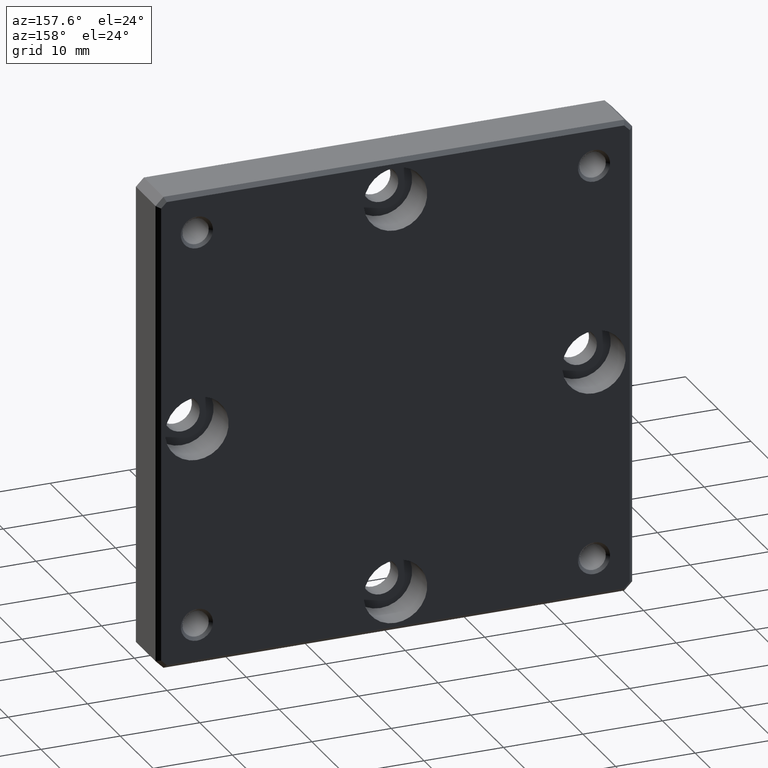
[diagram: clean part render]
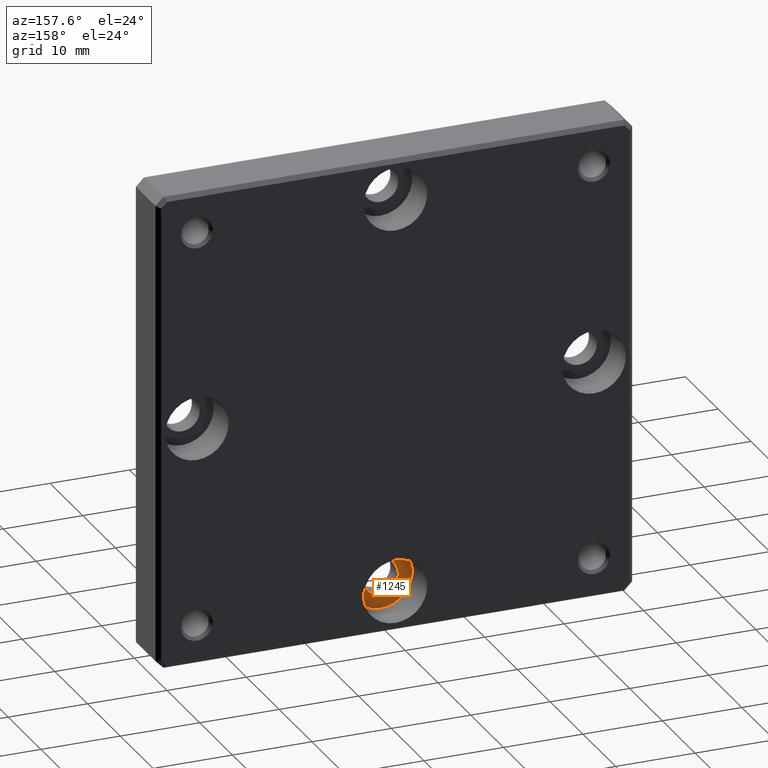
[diagram: same view with one face highlighted and labeled with its STEP entity id]
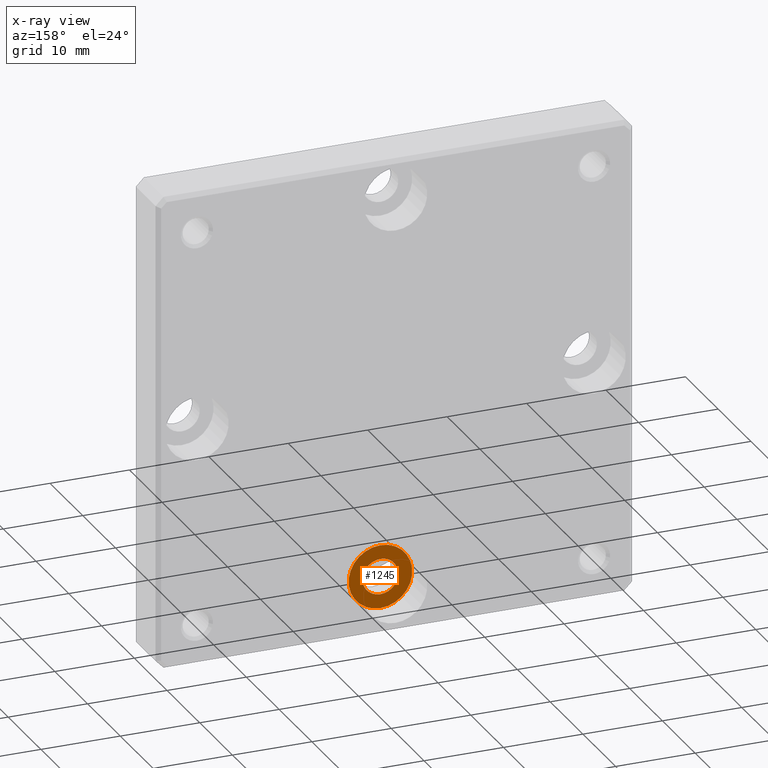
[diagram: x-ray of the same camera — body ghosted, the highlighted face saturated]
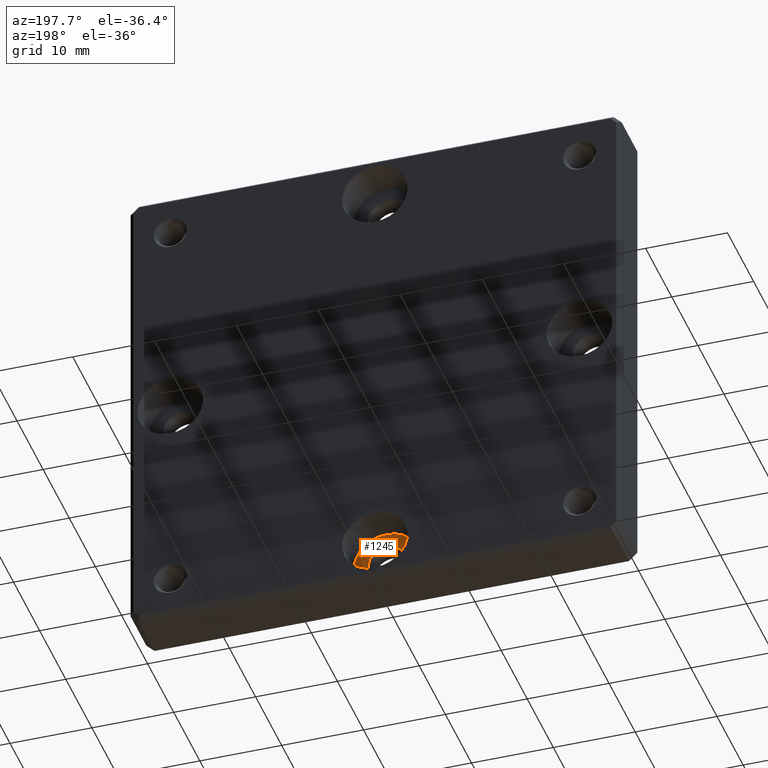
[diagram: same view with one face highlighted and labeled with its STEP entity id]
A machine part, auxiliary view. The second image highlights one B-rep face of the part: STEP entity #1245.
The next image is the same camera in x-ray: the body ghosted, the highlighted face saturated — about 0% of this face is hidden behind the body in this view.
A second angle (auxiliary view) of the same face is appended — the face is thin or edge-on in the first view.
In plain terms, the highlighted planar face has unit normal (0, -1, 0).
Its self-contained STEP definition (entity closure, byte-faithful):
#31 = AXIS2_PLACEMENT_3D ( 'NONE', #155, #1020, #43 ) ;
#37 = ORIENTED_EDGE ( 'NONE', *, *, #725, .T. ) ;
#43 = DIRECTION ( 'NONE',  ( 0.000000000000000000, 0.000000000000000000, 1.000000000000000000 ) ) ;
#150 = FACE_BOUND ( 'NONE', #758, .T. ) ;
#155 = CARTESIAN_POINT ( 'NONE',  ( -6.938893903907228378E-15, 2.400000000000000355, -24.99999999999999645 ) ) ;
#239 = EDGE_CURVE ( 'NONE', #1110, #1110, #255, .T. ) ;
#241 = CARTESIAN_POINT ( 'NONE',  ( -6.938893903907228378E-15, 2.400000000000000355, -24.99999999999999645 ) ) ;
#255 = CIRCLE ( 'NONE', #877, 2.249999999999998668 ) ;
#434 = CARTESIAN_POINT ( 'NONE',  ( -6.938893903907228378E-15, 2.400000000000000355, -22.75000000000000000 ) ) ;
#540 = FACE_OUTER_BOUND ( 'NONE', #701, .T. ) ;
#630 = PLANE ( 'NONE',  #963 ) ;
#638 = DIRECTION ( 'NONE',  ( 0.000000000000000000, 0.000000000000000000, 1.000000000000000000 ) ) ;
#701 = EDGE_LOOP ( 'NONE', ( #37 ) ) ;
#725 = EDGE_CURVE ( 'NONE', #831, #831, #1017, .T. ) ;
#743 = DIRECTION ( 'NONE',  ( 0.000000000000000000, -1.000000000000000000, 0.000000000000000000 ) ) ;
#758 = EDGE_LOOP ( 'NONE', ( #1173 ) ) ;
#831 = VERTEX_POINT ( 'NONE', #1220 ) ;
#877 = AXIS2_PLACEMENT_3D ( 'NONE', #241, #1104, #638 ) ;
#963 = AXIS2_PLACEMENT_3D ( 'NONE', #1013, #743, #1115 ) ;
#1013 = CARTESIAN_POINT ( 'NONE',  ( 2.249999999999992006, 2.400000000000000355, -24.99999999999999645 ) ) ;
#1017 = CIRCLE ( 'NONE', #31, 4.000000000000000000 ) ;
#1020 = DIRECTION ( 'NONE',  ( -0.000000000000000000, 1.000000000000000000, -0.000000000000000000 ) ) ;
#1104 = DIRECTION ( 'NONE',  ( -0.000000000000000000, 1.000000000000000000, -0.000000000000000000 ) ) ;
#1110 = VERTEX_POINT ( 'NONE', #434 ) ;
#1115 = DIRECTION ( 'NONE',  ( 0.000000000000000000, -0.000000000000000000, -1.000000000000000000 ) ) ;
#1173 = ORIENTED_EDGE ( 'NONE', *, *, #239, .F. ) ;
#1220 = CARTESIAN_POINT ( 'NONE',  ( -6.938893903907228378E-15, 2.400000000000000355, -20.99999999999999645 ) ) ;
#1245 = ADVANCED_FACE ( 'NONE', ( #150, #540 ), #630, .F. ) ;